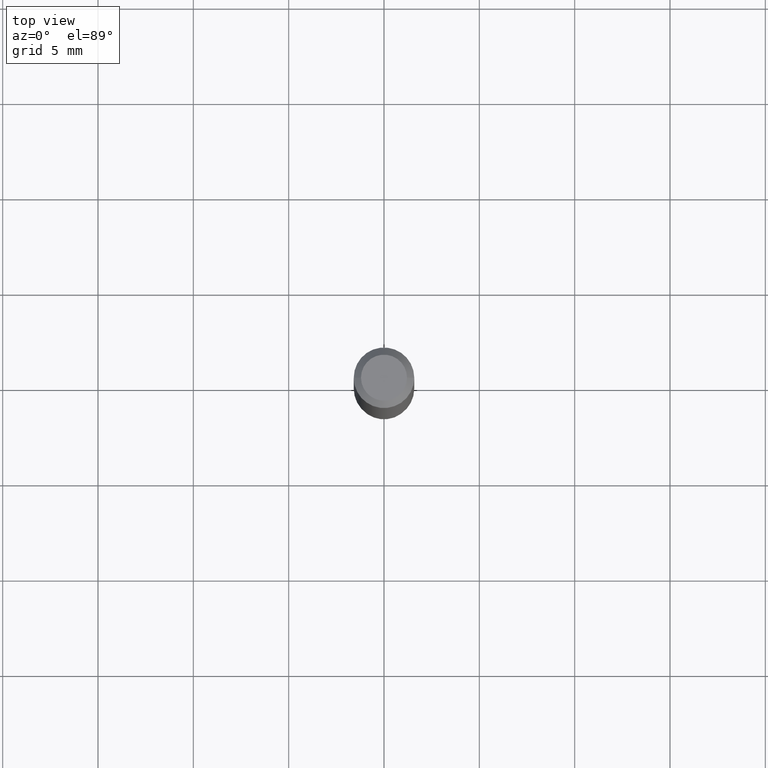
[diagram: clean part render]
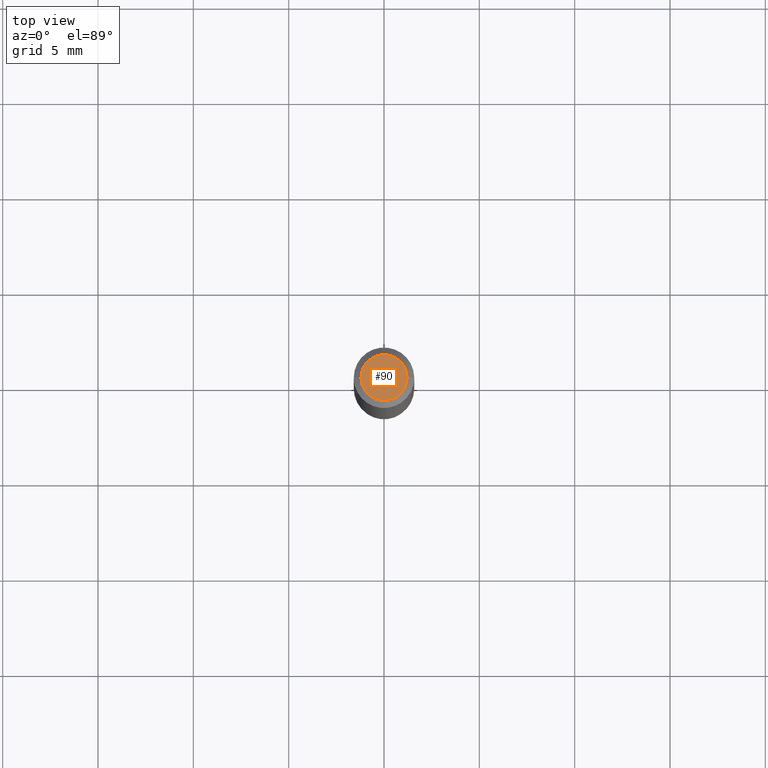
[diagram: same view with one face highlighted and labeled with its STEP entity id]
A machine part, top view. The second image highlights one B-rep face of the part: STEP entity #90.
In plain terms, the highlighted planar face has unit normal (0, -0, -1).
Its self-contained STEP definition (entity closure, byte-faithful):
#30 = EDGE_CURVE ( 'NONE', #394, #158, #232, .T. ) ;
#44 = ORIENTED_EDGE ( 'NONE', *, *, #255, .T. ) ;
#63 = FACE_OUTER_BOUND ( 'NONE', #197, .T. ) ;
#89 = CARTESIAN_POINT ( 'NONE',  ( -6.680649051745406845E-45, 9.538196290434862081E-31, 2.731847993664263218E-16 ) ) ;
#90 = ADVANCED_FACE ( 'NONE', ( #63 ), #107, .F. ) ;
#105 = DIRECTION ( 'NONE',  ( 2.438088387897960049E-29, -3.491481338843145188E-15, -1.000000000000000000 ) ) ;
#107 = PLANE ( 'NONE',  #138 ) ;
#131 = DIRECTION ( 'NONE',  ( -2.445468806185136597E-29, 3.491481338843145583E-15, 1.000000000000000000 ) ) ;
#138 = AXIS2_PLACEMENT_3D ( 'NONE', #338, #105, #497 ) ;
#158 = VERTEX_POINT ( 'NONE', #444 ) ;
#167 = DIRECTION ( 'NONE',  ( 1.000000000000000000, -6.982962677686266711E-15, 4.852736867747365086E-29 ) ) ;
#197 = EDGE_LOOP ( 'NONE', ( #249, #44 ) ) ;
#220 = CARTESIAN_POINT ( 'NONE',  ( -0.04750000000000000749, 3.578768372314221353E-16, 2.731847993664239060E-16 ) ) ;
#232 = CIRCLE ( 'NONE', #386, 0.04750000000000000749 ) ;
#249 = ORIENTED_EDGE ( 'NONE', *, *, #30, .T. ) ;
#255 = EDGE_CURVE ( 'NONE', #158, #394, #461, .T. ) ;
#256 = CARTESIAN_POINT ( 'NONE',  ( -6.680649051745406845E-45, 9.538196290434862081E-31, 2.731847993664263218E-16 ) ) ;
#265 = DIRECTION ( 'NONE',  ( 1.000000000000000000, -6.982962677686266711E-15, 4.852736867747365086E-29 ) ) ;
#294 = DIRECTION ( 'NONE',  ( -2.445468806185136597E-29, 3.491481338843145583E-15, 1.000000000000000000 ) ) ;
#338 = CARTESIAN_POINT ( 'NONE',  ( 3.316907271900976589E-16, 0.04750000000000000749, -2.925296391183627249E-17 ) ) ;
#386 = AXIS2_PLACEMENT_3D ( 'NONE', #256, #294, #265 ) ;
#394 = VERTEX_POINT ( 'NONE', #220 ) ;
#444 = CARTESIAN_POINT ( 'NONE',  ( 0.04750000000000000749, -4.035134999187568762E-16, 2.731847993664288856E-16 ) ) ;
#461 = CIRCLE ( 'NONE', #495, 0.04750000000000000749 ) ;
#495 = AXIS2_PLACEMENT_3D ( 'NONE', #89, #131, #167 ) ;
#497 = DIRECTION ( 'NONE',  ( -1.000000000000000000, 6.982962677686265922E-15, -4.876176775795935793E-29 ) ) ;